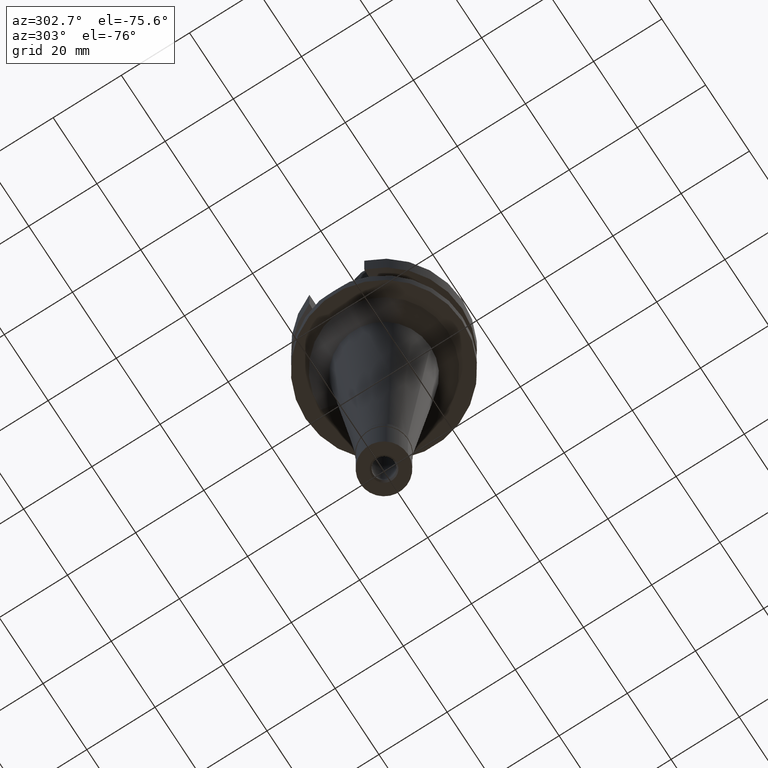
[diagram: clean part render]
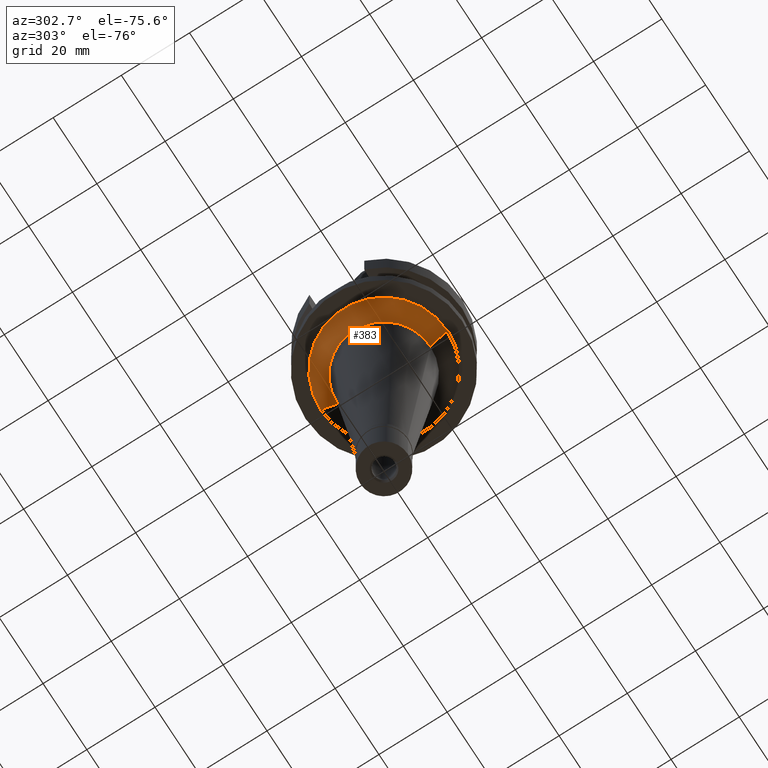
[diagram: same view with one face highlighted and labeled with its STEP entity id]
A machine part, auxiliary view. The second image highlights one B-rep face of the part: STEP entity #383.
In plain terms, the highlighted conical surface has half-angle 45 deg.
Its self-contained STEP definition (entity closure, byte-faithful):
#117 = CARTESIAN_POINT ( 'NONE',  ( 0.0000000000000000000, 0.0000000000000000000, -27.00000000000000000 ) ) ;
#179 = CARTESIAN_POINT ( 'NONE',  ( 0.0000000000000000000, 0.0000000000000000000, -24.50000000000000000 ) ) ;
#289 = EDGE_CURVE ( 'NONE', #636, #1362, #2320, .T. ) ;
#364 = AXIS2_PLACEMENT_3D ( 'NONE', #179, #1094, #1778 ) ;
#366 = DIRECTION ( 'NONE',  ( 0.0000000000000000000, -1.000000000000000000, 0.0000000000000000000 ) ) ;
#376 = CARTESIAN_POINT ( 'NONE',  ( 0.0000000000000000000, 18.58789636350000052, -22.00000000000000000 ) ) ;
#383 = ADVANCED_FACE ( 'NONE', ( #2237 ), #1689, .T. ) ;
#533 = LINE ( 'NONE', #559, #659 ) ;
#559 = CARTESIAN_POINT ( 'NONE',  ( 0.0000000000000000000, 18.58789636350000052, -22.00000000000000000 ) ) ;
#605 = CARTESIAN_POINT ( 'NONE',  ( 0.0000000000000000000, 0.0000000000000000000, -22.00000000000000000 ) ) ;
#618 = AXIS2_PLACEMENT_3D ( 'NONE', #605, #1282, #366 ) ;
#636 = VERTEX_POINT ( 'NONE', #977 ) ;
#659 = VECTOR ( 'NONE', #1410, 1000.000000000000000 ) ;
#662 = CIRCLE ( 'NONE', #618, 18.58789636350000052 ) ;
#684 = DIRECTION ( 'NONE',  ( 0.0000000000000000000, 0.7071067811864980568, -0.7071067811865969777 ) ) ;
#841 = VECTOR ( 'NONE', #684, 1000.000000000000000 ) ;
#847 = ORIENTED_EDGE ( 'NONE', *, *, #1490, .T. ) ;
#977 = CARTESIAN_POINT ( 'NONE',  ( 0.0000000000000000000, -13.58789636350000052, -27.00000000000000000 ) ) ;
#1006 = ORIENTED_EDGE ( 'NONE', *, *, #289, .F. ) ;
#1062 = DIRECTION ( 'NONE',  ( 0.0000000000000000000, 0.0000000000000000000, -1.000000000000000000 ) ) ;
#1074 = EDGE_CURVE ( 'NONE', #1545, #636, #2313, .T. ) ;
#1094 = DIRECTION ( 'NONE',  ( 0.0000000000000000000, 0.0000000000000000000, 1.000000000000000000 ) ) ;
#1186 = EDGE_CURVE ( 'NONE', #1970, #1362, #533, .T. ) ;
#1282 = DIRECTION ( 'NONE',  ( 0.0000000000000000000, 0.0000000000000000000, -1.000000000000000000 ) ) ;
#1311 = AXIS2_PLACEMENT_3D ( 'NONE', #117, #1062, #2488 ) ;
#1362 = VERTEX_POINT ( 'NONE', #1522 ) ;
#1410 = DIRECTION ( 'NONE',  ( 0.0000000000000000000, -0.7071067811864980568, -0.7071067811865969777 ) ) ;
#1490 = EDGE_CURVE ( 'NONE', #1545, #1970, #662, .T. ) ;
#1522 = CARTESIAN_POINT ( 'NONE',  ( 0.0000000000000000000, 13.58789636350000052, -27.00000000000000000 ) ) ;
#1545 = VERTEX_POINT ( 'NONE', #1827 ) ;
#1575 = ORIENTED_EDGE ( 'NONE', *, *, #1186, .T. ) ;
#1689 = CONICAL_SURFACE ( 'NONE', #364, 16.08789636349999697, 0.7853981633972997312 ) ;
#1737 = EDGE_LOOP ( 'NONE', ( #1006, #1774, #847, #1575 ) ) ;
#1774 = ORIENTED_EDGE ( 'NONE', *, *, #1074, .F. ) ;
#1778 = DIRECTION ( 'NONE',  ( 0.0000000000000000000, 1.000000000000000000, 0.0000000000000000000 ) ) ;
#1827 = CARTESIAN_POINT ( 'NONE',  ( 0.0000000000000000000, -18.58789636350000052, -22.00000000000000000 ) ) ;
#1970 = VERTEX_POINT ( 'NONE', #376 ) ;
#2237 = FACE_OUTER_BOUND ( 'NONE', #1737, .T. ) ;
#2297 = CARTESIAN_POINT ( 'NONE',  ( 0.0000000000000000000, -18.58789636350000052, -22.00000000000000000 ) ) ;
#2313 = LINE ( 'NONE', #2297, #841 ) ;
#2320 = CIRCLE ( 'NONE', #1311, 13.58789636350000052 ) ;
#2488 = DIRECTION ( 'NONE',  ( 0.0000000000000000000, -1.000000000000000000, 0.0000000000000000000 ) ) ;